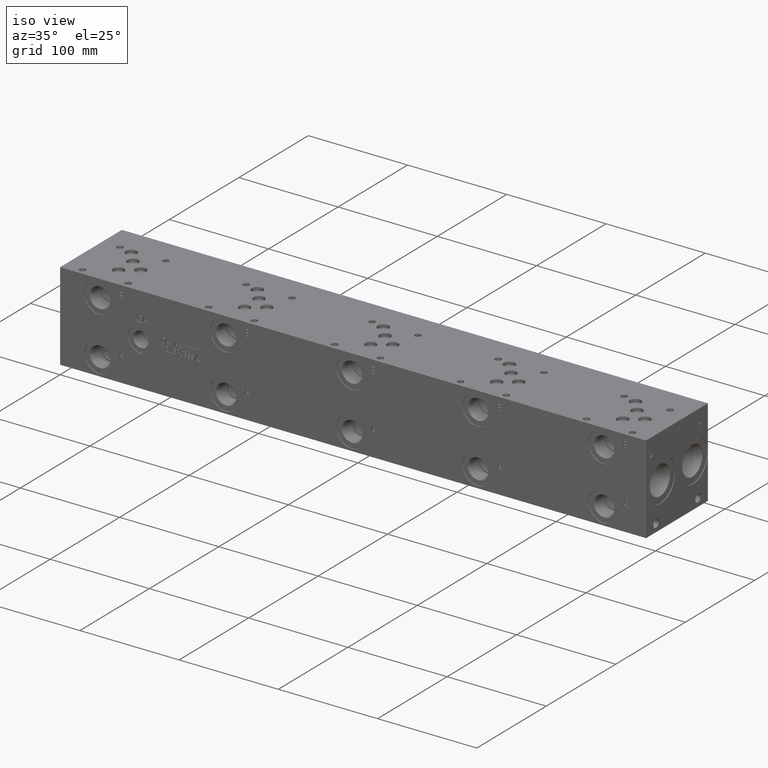
[diagram: clean part render]
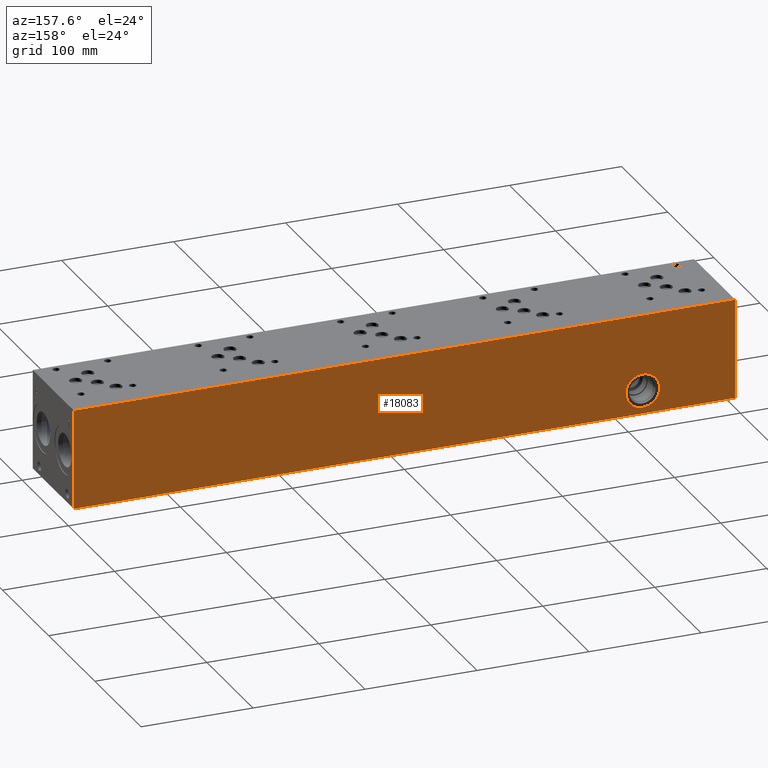
[diagram: tour spotlight — one face highlighted and labeled with its STEP entity id]
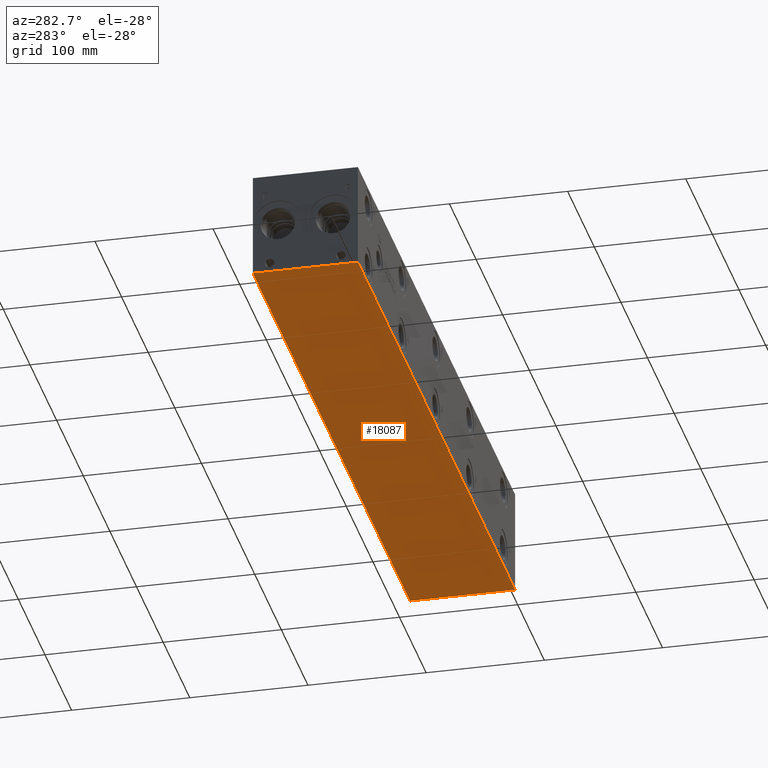
[diagram: tour spotlight — one face highlighted and labeled with its STEP entity id]
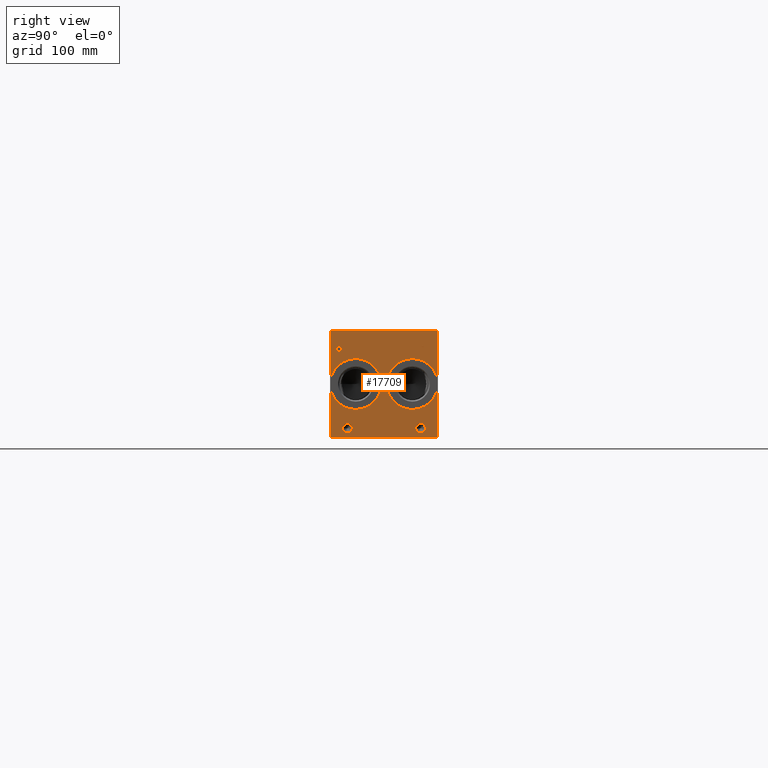
[diagram: tour spotlight — one face highlighted and labeled with its STEP entity id]
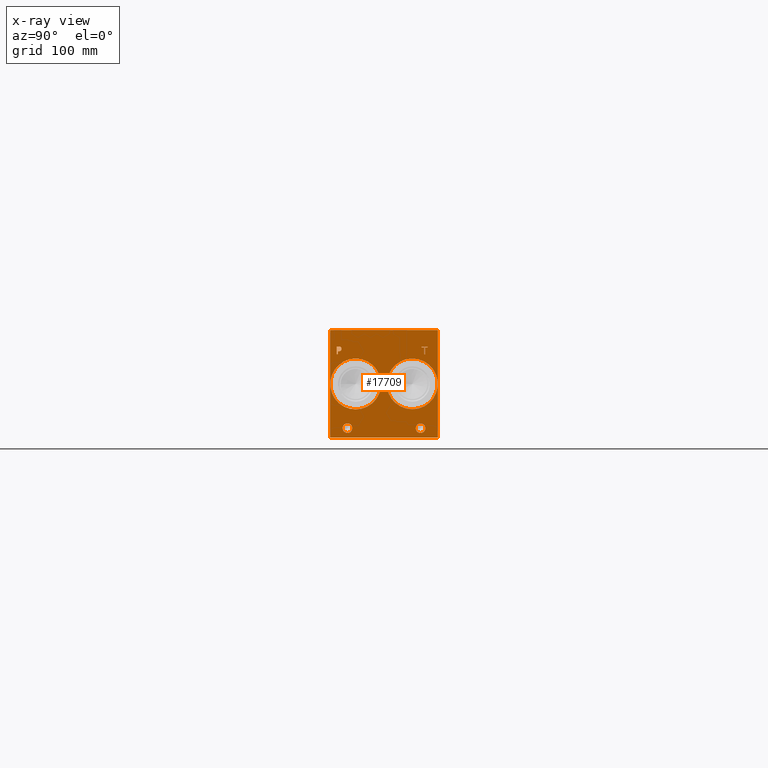
[diagram: x-ray of the same camera — body ghosted, this tour face saturated]
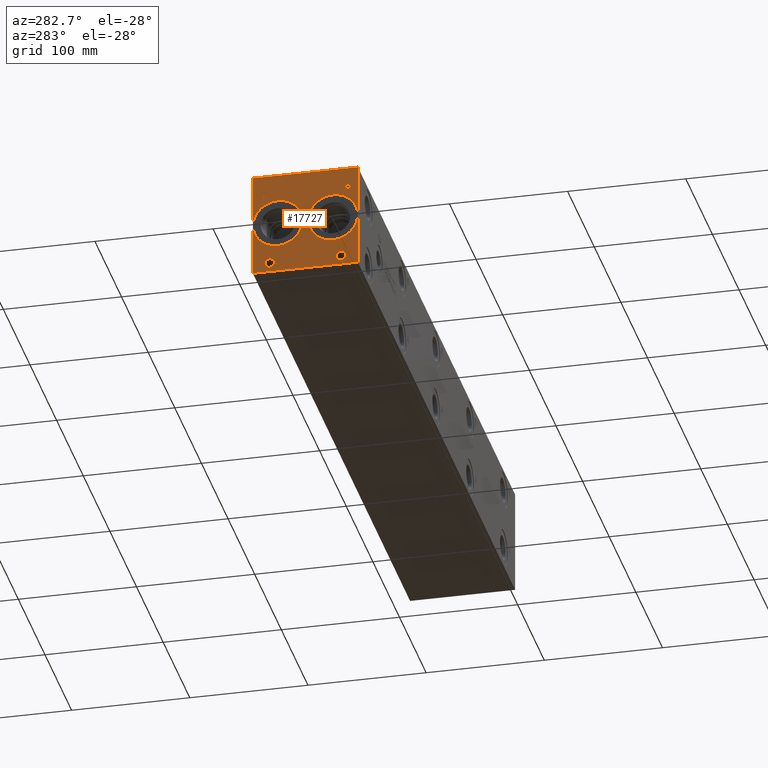
[diagram: tour spotlight — one face highlighted and labeled with its STEP entity id]
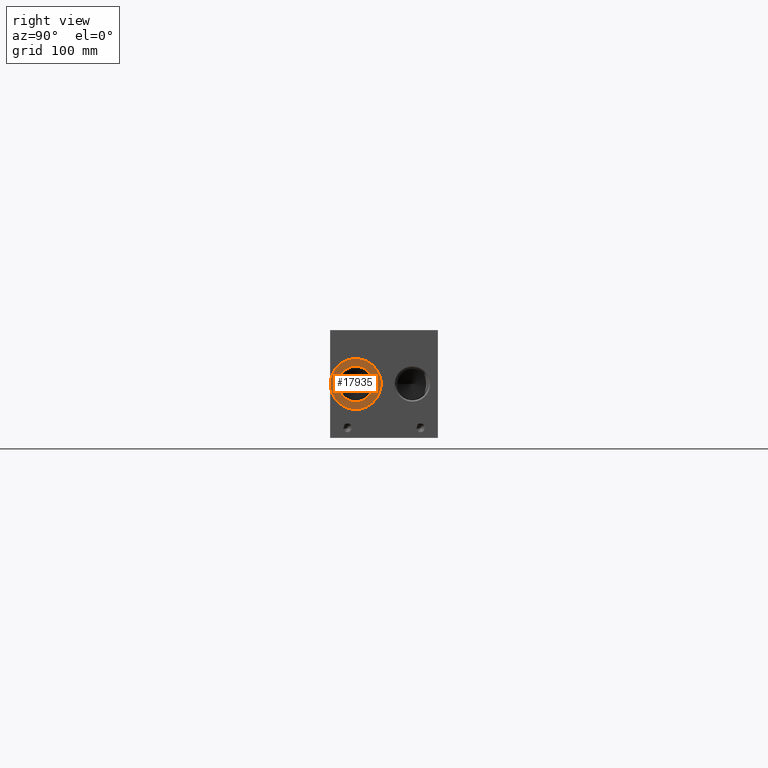
[diagram: tour spotlight — one face highlighted and labeled with its STEP entity id]
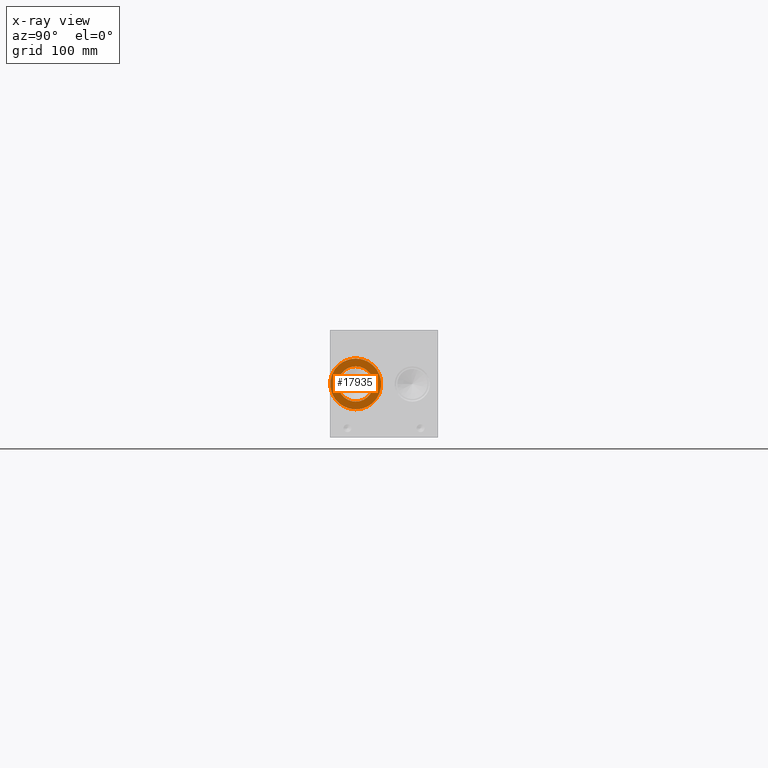
[diagram: x-ray of the same camera — body ghosted, this tour face saturated]
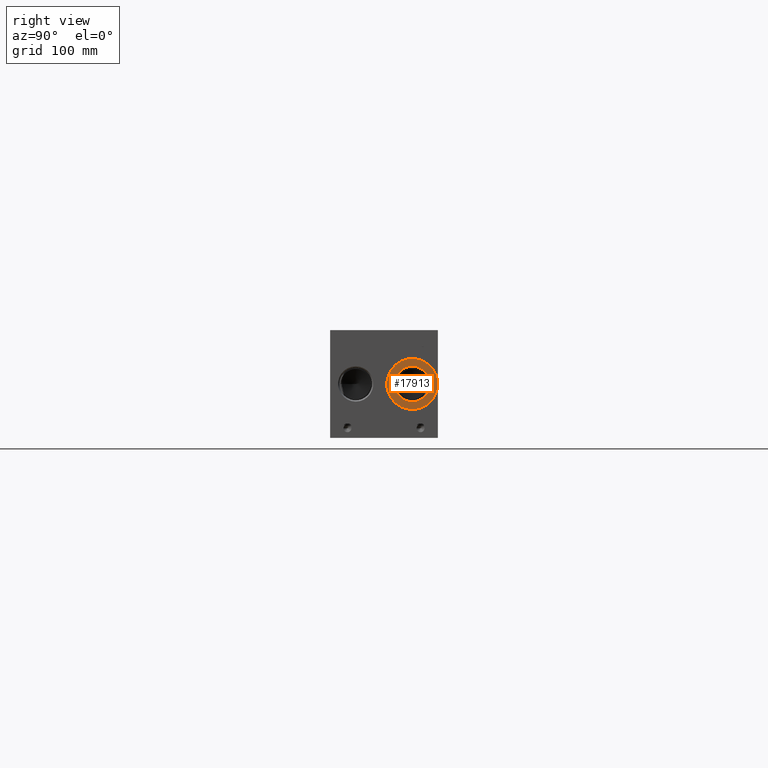
[diagram: tour spotlight — one face highlighted and labeled with its STEP entity id]
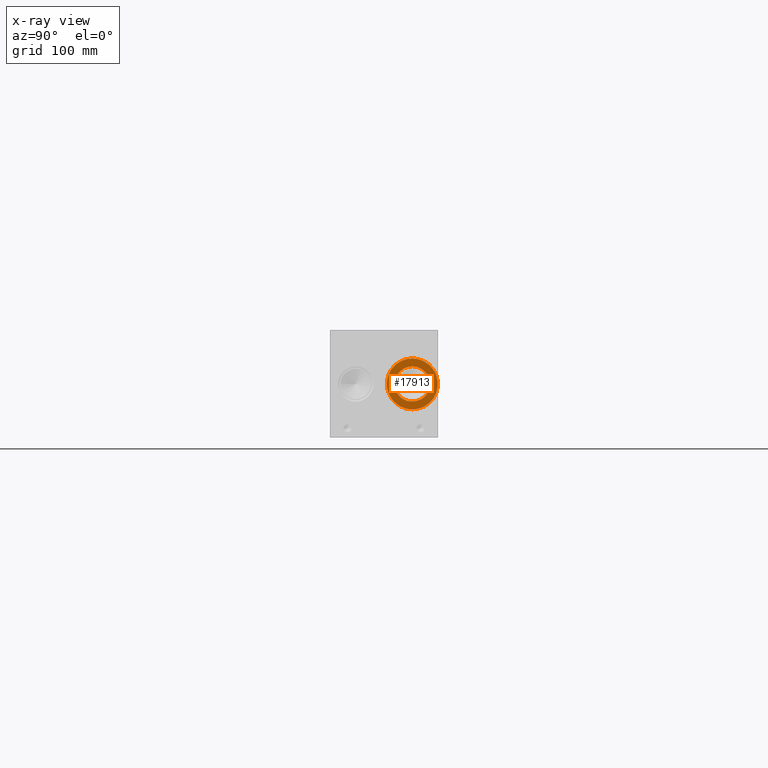
[diagram: x-ray of the same camera — body ghosted, this tour face saturated]
A machine part: a face-by-face anatomy tour. The part has 943 B-rep faces; the first image is the clean iso view, then the 6 largest visible faces are spotlighted one at a time (largest first), each with its STEP entity span.

Face 1 — auxiliary view, entity #18083. In plain terms, the highlighted planar face has unit normal (0, 1, 0).
Definition (entity closure, byte-faithful):
#529=CIRCLE('',#18545,15.08);
#530=CIRCLE('',#18546,15.08);
#1628=FACE_BOUND('',#3687,.T.);
#2607=FACE_OUTER_BOUND('',#3686,.T.);
#3686=EDGE_LOOP('',(#15972,#15973,#15974,#15975));
#3687=EDGE_LOOP('',(#15976,#15977));
#4888=LINE('',#29274,#6406);
#4924=LINE('',#29498,#6442);
#5248=LINE('',#31542,#6766);
#5249=LINE('',#31543,#6767);
#6406=VECTOR('',#21327,10.);
#6442=VECTOR('',#21399,10.);
#6766=VECTOR('',#23473,10.);
#6767=VECTOR('',#23474,10.);
#7834=VERTEX_POINT('',#29271);
#7835=VERTEX_POINT('',#29273);
#7876=VERTEX_POINT('',#29494);
#7877=VERTEX_POINT('',#29496);
#7938=VERTEX_POINT('',#29859);
#7939=VERTEX_POINT('',#29860);
#10101=EDGE_CURVE('',#7834,#7835,#4888,.T.);
#10161=EDGE_CURVE('',#7876,#7877,#4924,.T.);
#10257=EDGE_CURVE('',#7938,#7939,#529,.T.);
#10258=EDGE_CURVE('',#7939,#7938,#530,.T.);
#11040=EDGE_CURVE('',#7834,#7876,#5248,.T.);
#11041=EDGE_CURVE('',#7835,#7877,#5249,.T.);
#15972=ORIENTED_EDGE('',*,*,#11040,.T.);
#15973=ORIENTED_EDGE('',*,*,#10161,.T.);
#15974=ORIENTED_EDGE('',*,*,#11041,.F.);
#15975=ORIENTED_EDGE('',*,*,#10101,.F.);
#15976=ORIENTED_EDGE('',*,*,#10257,.T.);
#15977=ORIENTED_EDGE('',*,*,#10258,.T.);
#16541=PLANE('',#19384);
#18083=ADVANCED_FACE('',(#2607,#1628),#16541,.T.);
#18545=AXIS2_PLACEMENT_3D('',#29861,#21535,#21536);
#18546=AXIS2_PLACEMENT_3D('',#29862,#21537,#21538);
#19384=AXIS2_PLACEMENT_3D('',#31541,#23471,#23472);
#21327=DIRECTION('',(0.,0.,1.));
#21399=DIRECTION('',(0.,0.,1.));
#21535=DIRECTION('center_axis',(0.,-1.,0.));
#21536=DIRECTION('ref_axis',(1.,0.,0.));
#21537=DIRECTION('center_axis',(0.,-1.,0.));
#21538=DIRECTION('ref_axis',(1.,0.,0.));
#23471=DIRECTION('center_axis',(0.,1.,0.));
#23472=DIRECTION('ref_axis',(-1.,0.,0.));
#23473=DIRECTION('',(-1.,0.,0.));
#23474=DIRECTION('',(-1.,0.,0.));
#29271=CARTESIAN_POINT('',(590.55,88.9,0.));
#29273=CARTESIAN_POINT('',(590.55,88.9,88.9));
#29274=CARTESIAN_POINT('',(590.55,88.9,0.));
#29494=CARTESIAN_POINT('',(0.,88.9,0.));
#29496=CARTESIAN_POINT('',(0.,88.9,88.9));
#29498=CARTESIAN_POINT('',(0.,88.9,0.));
#29859=CARTESIAN_POINT('',(97.63,88.9,20.6502));
#29860=CARTESIAN_POINT('',(67.47,88.9,20.6502));
#29861=CARTESIAN_POINT('Origin',(82.55,88.9,20.6502));
#29862=CARTESIAN_POINT('Origin',(82.55,88.9,20.6502));
#31541=CARTESIAN_POINT('Origin',(590.55,88.9,0.));
#31542=CARTESIAN_POINT('',(590.55,88.9,0.));
#31543=CARTESIAN_POINT('',(590.55,88.9,88.9));

Face 2 — auxiliary view, entity #18087. In plain terms, the highlighted planar face has unit normal (0, 0, 1).
Definition (entity closure, byte-faithful):
#2611=FACE_OUTER_BOUND('',#3731,.T.);
#3731=EDGE_LOOP('',(#16076,#16077,#16078,#16079));
#3765=LINE('',#23554,#5283);
#4887=LINE('',#29272,#6405);
#4922=LINE('',#29495,#6440);
#5248=LINE('',#31542,#6766);
#5283=VECTOR('',#19450,10.);
#6405=VECTOR('',#21326,10.);
#6440=VECTOR('',#21397,10.);
#6766=VECTOR('',#23473,10.);
#6790=VERTEX_POINT('',#23552);
#6791=VERTEX_POINT('',#23553);
#7834=VERTEX_POINT('',#29271);
#7876=VERTEX_POINT('',#29494);
#8556=EDGE_CURVE('',#6790,#6791,#3765,.T.);
#10100=EDGE_CURVE('',#6791,#7834,#4887,.T.);
#10159=EDGE_CURVE('',#7876,#6790,#4922,.T.);
#11040=EDGE_CURVE('',#7834,#7876,#5248,.T.);
#16076=ORIENTED_EDGE('',*,*,#8556,.F.);
#16077=ORIENTED_EDGE('',*,*,#10159,.F.);
#16078=ORIENTED_EDGE('',*,*,#11040,.F.);
#16079=ORIENTED_EDGE('',*,*,#10100,.F.);
#16545=PLANE('',#19388);
#18087=ADVANCED_FACE('',(#2611),#16545,.F.);
#19388=AXIS2_PLACEMENT_3D('',#31547,#23481,#23482);
#19450=DIRECTION('',(1.,0.,0.));
#21326=DIRECTION('',(0.,1.,0.));
#21397=DIRECTION('',(0.,-1.,0.));
#23473=DIRECTION('',(-1.,0.,0.));
#23481=DIRECTION('center_axis',(0.,0.,1.));
#23482=DIRECTION('ref_axis',(1.,0.,0.));
#23552=CARTESIAN_POINT('',(0.,0.,0.));
#23553=CARTESIAN_POINT('',(590.55,0.,0.));
#23554=CARTESIAN_POINT('',(0.,0.,0.));
#29271=CARTESIAN_POINT('',(590.55,88.9,0.));
#29272=CARTESIAN_POINT('',(590.55,0.,0.));
#29494=CARTESIAN_POINT('',(0.,88.9,0.));
#29495=CARTESIAN_POINT('',(0.,88.9,0.));
#31542=CARTESIAN_POINT('',(590.55,88.9,0.));
#31547=CARTESIAN_POINT('Origin',(295.275,44.45,0.));

Face 3 — right view, entity #17709. An x-ray twin of the same camera follows (body ghosted, this face saturated) — the face is partly hidden behind the body. In plain terms, the highlighted planar face has unit normal (1, 0, 0).
Definition (entity closure, byte-faithful):
#513=CIRCLE('',#18492,21.0185);
#514=CIRCLE('',#18493,21.0185);
#515=CIRCLE('',#18494,21.0185);
#516=CIRCLE('',#18495,21.0185);
#517=CIRCLE('',#18496,3.9624);
#518=CIRCLE('',#18497,3.9624);
#519=CIRCLE('',#18498,3.9624);
#520=CIRCLE('',#18499,3.9624);
#1446=B_SPLINE_CURVE_WITH_KNOTS('',2,(#29173,#29174,#29175,#29176),
 .UNSPECIFIED.,.F.,.F.,(3,1,3),(0.,1.,2.),.UNSPECIFIED.);
#1448=B_SPLINE_CURVE_WITH_KNOTS('',2,(#29194,#29195,#29196,#29197),
 .UNSPECIFIED.,.F.,.F.,(3,1,3),(0.,1.,2.),.UNSPECIFIED.);
#1450=B_SPLINE_CURVE_WITH_KNOTS('',2,(#29243,#29244,#29245,#29246),
 .UNSPECIFIED.,.F.,.F.,(3,1,3),(0.,1.,2.),.UNSPECIFIED.);
#1452=B_SPLINE_CURVE_WITH_KNOTS('',2,(#29261,#29262,#29263,#29264),
 .UNSPECIFIED.,.F.,.F.,(3,1,3),(0.,1.,2.),.UNSPECIFIED.);
#1556=FACE_BOUND('',#3241,.T.);
#1557=FACE_BOUND('',#3242,.T.);
#1558=FACE_BOUND('',#3243,.T.);
#1559=FACE_BOUND('',#3244,.T.);
#1560=FACE_BOUND('',#3245,.T.);
#1561=FACE_BOUND('',#3246,.T.);
#2233=FACE_OUTER_BOUND('',#3240,.T.);
#3240=EDGE_LOOP('',(#14117,#14118,#14119,#14120));
#3241=EDGE_LOOP('',(#14121,#14122,#14123,#14124,#14125,#14126,#14127,#14128));
#3242=EDGE_LOOP('',(#14129,#14130));
#3243=EDGE_LOOP('',(#14131,#14132));
#3244=EDGE_LOOP('',(#14133,#14134));
#3245=EDGE_LOOP('',(#14135,#14136));
#3246=EDGE_LOOP('',(#14137,#14138,#14139,#14140,#14141,#14142,#14143,#14144,
#14145));
#3766=LINE('',#23556,#5284);
#4807=LINE('',#28974,#6325);
#4811=LINE('',#28982,#6329);
#4814=LINE('',#28988,#6332);
#4817=LINE('',#28994,#6335);
#4820=LINE('',#29000,#6338);
#4823=LINE('',#29006,#6341);
#4826=LINE('',#29012,#6344);
#4829=LINE('',#29017,#6347);
#4871=LINE('',#29206,#6389);
#4874=LINE('',#29212,#6392);
#4877=LINE('',#29218,#6395);
#4880=LINE('',#29224,#6398);
#4883=LINE('',#29230,#6401);
#4887=LINE('',#29272,#6405);
#4888=LINE('',#29274,#6406);
#4889=LINE('',#29275,#6407);
#5284=VECTOR('',#19451,10.);
#6325=VECTOR('',#21192,10.);
#6329=VECTOR('',#21198,10.);
#6332=VECTOR('',#21203,10.);
#6335=VECTOR('',#21208,10.);
#6338=VECTOR('',#21213,10.);
#6341=VECTOR('',#21218,10.);
#6344=VECTOR('',#21223,10.);
#6347=VECTOR('',#21228,10.);
#6389=VECTOR('',#21298,10.);
#6392=VECTOR('',#21303,10.);
#6395=VECTOR('',#21308,10.);
#6398=VECTOR('',#21313,10.);
#6401=VECTOR('',#21318,10.);
#6405=VECTOR('',#21326,10.);
#6406=VECTOR('',#21327,10.);
#6407=VECTOR('',#21328,10.);
#6791=VERTEX_POINT('',#23553);
#6792=VERTEX_POINT('',#23555);
#7770=VERTEX_POINT('',#28972);
#7771=VERTEX_POINT('',#28973);
#7774=VERTEX_POINT('',#28981);
#7776=VERTEX_POINT('',#28987);
#7778=VERTEX_POINT('',#28993);
#7780=VERTEX_POINT('',#28999);
#7782=VERTEX_POINT('',#29005);
#7784=VERTEX_POINT('',#29011);
#7816=VERTEX_POINT('',#29171);
#7817=VERTEX_POINT('',#29172);
#7820=VERTEX_POINT('',#29193);
#7822=VERTEX_POINT('',#29205);
#7824=VERTEX_POINT('',#29211);
#7826=VERTEX_POINT('',#29217);
#7828=VERTEX_POINT('',#29223);
#7830=VERTEX_POINT('',#29229);
#7832=VERTEX_POINT('',#29242);
#7834=VERTEX_POINT('',#29271);
#7835=VERTEX_POINT('',#29273);
#7836=VERTEX_POINT('',#29276);
#7837=VERTEX_POINT('',#29277);
#7838=VERTEX_POINT('',#29280);
#7839=VERTEX_POINT('',#29281);
#7840=VERTEX_POINT('',#29284);
#7841=VERTEX_POINT('',#29285);
#7842=VERTEX_POINT('',#29288);
#7843=VERTEX_POINT('',#29289);
#8557=EDGE_CURVE('',#6791,#6792,#3766,.T.);
#10004=EDGE_CURVE('',#7770,#7771,#4807,.T.);
#10008=EDGE_CURVE('',#7774,#7770,#4811,.T.);
#10011=EDGE_CURVE('',#7776,#7774,#4814,.T.);
#10014=EDGE_CURVE('',#7778,#7776,#4817,.T.);
#10017=EDGE_CURVE('',#7780,#7778,#4820,.T.);
#10020=EDGE_CURVE('',#7782,#7780,#4823,.T.);
#10023=EDGE_CURVE('',#7784,#7782,#4826,.T.);
#10026=EDGE_CURVE('',#7771,#7784,#4829,.T.);
#10073=EDGE_CURVE('',#7816,#7817,#1446,.T.);
#10077=EDGE_CURVE('',#7820,#7816,#1448,.T.);
#10080=EDGE_CURVE('',#7822,#7820,#4871,.T.);
#10083=EDGE_CURVE('',#7824,#7822,#4874,.T.);
#10086=EDGE_CURVE('',#7826,#7824,#4877,.T.);
#10089=EDGE_CURVE('',#7828,#7826,#4880,.T.);
#10092=EDGE_CURVE('',#7830,#7828,#4883,.T.);
#10095=EDGE_CURVE('',#7832,#7830,#1450,.T.);
#10098=EDGE_CURVE('',#7817,#7832,#1452,.T.);
#10100=EDGE_CURVE('',#6791,#7834,#4887,.T.);
#10101=EDGE_CURVE('',#7834,#7835,#4888,.T.);
#10102=EDGE_CURVE('',#6792,#7835,#4889,.T.);
#10103=EDGE_CURVE('',#7836,#7837,#513,.T.);
#10104=EDGE_CURVE('',#7837,#7836,#514,.T.);
#10105=EDGE_CURVE('',#7838,#7839,#515,.T.);
#10106=EDGE_CURVE('',#7839,#7838,#516,.T.);
#10107=EDGE_CURVE('',#7840,#7841,#517,.T.);
#10108=EDGE_CURVE('',#7841,#7840,#518,.T.);
#10109=EDGE_CURVE('',#7842,#7843,#519,.T.);
#10110=EDGE_CURVE('',#7843,#7842,#520,.T.);
#14117=ORIENTED_EDGE('',*,*,#10100,.T.);
#14118=ORIENTED_EDGE('',*,*,#10101,.T.);
#14119=ORIENTED_EDGE('',*,*,#10102,.F.);
#14120=ORIENTED_EDGE('',*,*,#8557,.F.);
#14121=ORIENTED_EDGE('',*,*,#10004,.T.);
#14122=ORIENTED_EDGE('',*,*,#10026,.T.);
#14123=ORIENTED_EDGE('',*,*,#10023,.T.);
#14124=ORIENTED_EDGE('',*,*,#10020,.T.);
#14125=ORIENTED_EDGE('',*,*,#10017,.T.);
#14126=ORIENTED_EDGE('',*,*,#10014,.T.);
#14127=ORIENTED_EDGE('',*,*,#10011,.T.);
#14128=ORIENTED_EDGE('',*,*,#10008,.T.);
#14129=ORIENTED_EDGE('',*,*,#10103,.T.);
#14130=ORIENTED_EDGE('',*,*,#10104,.T.);
#14131=ORIENTED_EDGE('',*,*,#10105,.T.);
#14132=ORIENTED_EDGE('',*,*,#10106,.T.);
#14133=ORIENTED_EDGE('',*,*,#10107,.T.);
#14134=ORIENTED_EDGE('',*,*,#10108,.T.);
#14135=ORIENTED_EDGE('',*,*,#10109,.T.);
#14136=ORIENTED_EDGE('',*,*,#10110,.T.);
#14137=ORIENTED_EDGE('',*,*,#10073,.T.);
#14138=ORIENTED_EDGE('',*,*,#10098,.T.);
#14139=ORIENTED_EDGE('',*,*,#10095,.T.);
#14140=ORIENTED_EDGE('',*,*,#10092,.T.);
#14141=ORIENTED_EDGE('',*,*,#10089,.T.);
#14142=ORIENTED_EDGE('',*,*,#10086,.T.);
#14143=ORIENTED_EDGE('',*,*,#10083,.T.);
#14144=ORIENTED_EDGE('',*,*,#10080,.T.);
#14145=ORIENTED_EDGE('',*,*,#10077,.T.);
#16447=PLANE('',#18491);
#17709=ADVANCED_FACE('',(#2233,#1556,#1557,#1558,#1559,#1560,#1561),#16447,
 .T.);
#18491=AXIS2_PLACEMENT_3D('',#29270,#21324,#21325);
#18492=AXIS2_PLACEMENT_3D('',#29278,#21329,#21330);
#18493=AXIS2_PLACEMENT_3D('',#29279,#21331,#21332);
#18494=AXIS2_PLACEMENT_3D('',#29282,#21333,#21334);
#18495=AXIS2_PLACEMENT_3D('',#29283,#21335,#21336);
#18496=AXIS2_PLACEMENT_3D('',#29286,#21337,#21338);
#18497=AXIS2_PLACEMENT_3D('',#29287,#21339,#21340);
#18498=AXIS2_PLACEMENT_3D('',#29290,#21341,#21342);
#18499=AXIS2_PLACEMENT_3D('',#29291,#21343,#21344);
#19451=DIRECTION('',(0.,0.,1.));
#21192=DIRECTION('',(0.,-1.,0.));
#21198=DIRECTION('',(0.,0.,-1.));
#21203=DIRECTION('',(0.,-1.,0.));
#21208=DIRECTION('',(0.,0.,-1.));
#21213=DIRECTION('',(0.,1.,0.));
#21218=DIRECTION('',(0.,0.,1.));
#21223=DIRECTION('',(0.,-1.,0.));
#21228=DIRECTION('',(0.,0.,1.));
#21298=DIRECTION('',(0.,1.,0.));
#21303=DIRECTION('',(0.,0.,1.));
#21308=DIRECTION('',(0.,-1.,0.));
#21313=DIRECTION('',(0.,0.,-1.));
#21318=DIRECTION('',(0.,-1.,0.));
#21324=DIRECTION('center_axis',(1.,0.,0.));
#21325=DIRECTION('ref_axis',(0.,1.,0.));
#21326=DIRECTION('',(0.,1.,0.));
#21327=DIRECTION('',(0.,0.,1.));
#21328=DIRECTION('',(0.,1.,0.));
#21329=DIRECTION('center_axis',(-1.,0.,0.));
#21330=DIRECTION('ref_axis',(0.,0.,-1.));
#21331=DIRECTION('center_axis',(-1.,0.,0.));
#21332=DIRECTION('ref_axis',(0.,0.,-1.));
#21333=DIRECTION('center_axis',(-1.,0.,0.));
#21334=DIRECTION('ref_axis',(0.,0.,-1.));
#21335=DIRECTION('center_axis',(-1.,0.,0.));
#21336=DIRECTION('ref_axis',(0.,0.,-1.));
#21337=DIRECTION('center_axis',(-1.,0.,0.));
#21338=DIRECTION('ref_axis',(0.,1.,0.));
#21339=DIRECTION('center_axis',(-1.,0.,0.));
#21340=DIRECTION('ref_axis',(0.,1.,0.));
#21341=DIRECTION('center_axis',(-1.,0.,0.));
#21342=DIRECTION('ref_axis',(0.,1.,0.));
#21343=DIRECTION('center_axis',(-1.,0.,0.));
#21344=DIRECTION('ref_axis',(0.,1.,0.));
#23553=CARTESIAN_POINT('',(590.55,0.,0.));
#23555=CARTESIAN_POINT('',(590.55,0.,88.9));
#23556=CARTESIAN_POINT('',(590.55,0.,0.));
#28972=CARTESIAN_POINT('',(590.55,78.375415271453,69.05625));
#28973=CARTESIAN_POINT('',(590.55,77.5314930799135,69.05625));
#28974=CARTESIAN_POINT('',(590.55,39.1877076357265,69.05625));
#28981=CARTESIAN_POINT('',(590.55,78.375415271453,74.6549533194816));
#28982=CARTESIAN_POINT('',(590.55,78.375415271453,37.3274766597408));
#28987=CARTESIAN_POINT('',(590.55,80.5058042183881,74.6549533194816));
#28988=CARTESIAN_POINT('',(590.55,40.252902109194,74.6549533194816));
#28993=CARTESIAN_POINT('',(590.55,80.5058042183881,75.4062499046326));
#28994=CARTESIAN_POINT('',(590.55,80.5058042183881,37.7031249523163));
#28999=CARTESIAN_POINT('',(590.55,75.4011041329784,75.4062499046326));
#29000=CARTESIAN_POINT('',(590.55,37.7005520664892,75.4062499046326));
#29005=CARTESIAN_POINT('',(590.55,75.4011041329784,74.6549533194816));
#29006=CARTESIAN_POINT('',(590.55,75.4011041329784,37.3274766597408));
#29011=CARTESIAN_POINT('',(590.55,77.5314930799135,74.6549533194816));
#29012=CARTESIAN_POINT('',(590.55,38.7657465399567,74.6549533194816));
#29017=CARTESIAN_POINT('',(590.55,77.5314930799135,34.528125));
#29171=CARTESIAN_POINT('',(590.55,8.66306720235939,75.0100181439707));
#29172=CARTESIAN_POINT('',(590.55,9.41950965453199,73.491987372604));
#29173=CARTESIAN_POINT('Ctrl Pts',(590.55,8.66306720235939,75.0100181439707));
#29174=CARTESIAN_POINT('Ctrl Pts',(590.55,9.01813202684857,74.7681623939564));
#29175=CARTESIAN_POINT('Ctrl Pts',(590.55,9.41950965453199,74.0220116758269));
#29176=CARTESIAN_POINT('Ctrl Pts',(590.55,9.41950965453199,73.491987372604));
#29193=CARTESIAN_POINT('',(590.55,7.0009521543883,75.4062499046326));
#29194=CARTESIAN_POINT('Ctrl Pts',(590.55,7.0009521543883,75.4062499046326));
#29195=CARTESIAN_POINT('Ctrl Pts',(590.55,7.56699752676236,75.4062499046326));
#29196=CARTESIAN_POINT('Ctrl Pts',(590.55,8.35946104808603,75.2209986918556));
#29197=CARTESIAN_POINT('Ctrl Pts',(590.55,8.66306720235939,75.0100181439707));
#29205=CARTESIAN_POINT('',(590.55,5.40573337769779,75.4062499046326));
#29206=CARTESIAN_POINT('',(590.55,2.70286668884889,75.4062499046326));
#29211=CARTESIAN_POINT('',(590.55,5.40573337769779,69.05625));
#29212=CARTESIAN_POINT('',(590.55,5.40573337769779,34.528125));
#29217=CARTESIAN_POINT('',(590.55,6.24965556923729,69.05625));
#29218=CARTESIAN_POINT('',(590.55,3.12482778461864,69.05625));
#29223=CARTESIAN_POINT('',(590.55,6.24965556923729,71.4233488299279));
#29224=CARTESIAN_POINT('',(590.55,6.24965556923729,35.7116744149639));
#29229=CARTESIAN_POINT('',(590.55,6.96493108523723,71.4233488299279));
#29230=CARTESIAN_POINT('',(590.55,3.48246554261861,71.4233488299279));
#29242=CARTESIAN_POINT('',(590.55,8.8637560162011,72.0820198086904));
#29243=CARTESIAN_POINT('Ctrl Pts',(590.55,8.8637560162011,72.0820198086904));
#29244=CARTESIAN_POINT('Ctrl Pts',(590.55,8.53442052681983,71.7578301863307));
#29245=CARTESIAN_POINT('Ctrl Pts',(590.55,7.64418553208609,71.4233488299279));
#29246=CARTESIAN_POINT('Ctrl Pts',(590.55,6.96493108523723,71.4233488299279));
#29261=CARTESIAN_POINT('Ctrl Pts',(590.55,9.41950965453199,73.491987372604));
#29262=CARTESIAN_POINT('Ctrl Pts',(590.55,9.41950965453199,73.0803180108774));
#29263=CARTESIAN_POINT('Ctrl Pts',(590.55,9.1261952343018,72.3393131597695));
#29264=CARTESIAN_POINT('Ctrl Pts',(590.55,8.8637560162011,72.0820198086904));
#29270=CARTESIAN_POINT('Origin',(590.55,0.,0.));
#29271=CARTESIAN_POINT('',(590.55,88.9,0.));
#29272=CARTESIAN_POINT('',(590.55,0.,0.));
#29273=CARTESIAN_POINT('',(590.55,88.9,88.9));
#29274=CARTESIAN_POINT('',(590.55,88.9,0.));
#29275=CARTESIAN_POINT('',(590.55,0.,88.9));
#29276=CARTESIAN_POINT('',(590.55,21.082,23.4315));
#29277=CARTESIAN_POINT('',(590.55,21.082,65.4685));
#29278=CARTESIAN_POINT('Origin',(590.55,21.082,44.45));
#29279=CARTESIAN_POINT('Origin',(590.55,21.082,44.45));
#29280=CARTESIAN_POINT('',(590.55,67.818,23.4315));
#29281=CARTESIAN_POINT('',(590.55,67.818,65.4685));
#29282=CARTESIAN_POINT('Origin',(590.55,67.818,44.45));
#29283=CARTESIAN_POINT('Origin',(590.55,67.818,44.45));
#29284=CARTESIAN_POINT('',(590.55,78.5876,7.9248));
#29285=CARTESIAN_POINT('',(590.55,70.6628,7.9248));
#29286=CARTESIAN_POINT('Origin',(590.55,74.6252,7.9248));
#29287=CARTESIAN_POINT('Origin',(590.55,74.6252,7.9248));
#29288=CARTESIAN_POINT('',(590.55,18.2372,7.9248));
#29289=CARTESIAN_POINT('',(590.55,10.3124,7.9248));
#29290=CARTESIAN_POINT('Origin',(590.55,14.2748,7.9248));
#29291=CARTESIAN_POINT('Origin',(590.55,14.2748,7.9248));

Face 4 — auxiliary view, entity #17727. In plain terms, the highlighted planar face has unit normal (-1, 0, 0).
Definition (entity closure, byte-faithful):
#521=CIRCLE('',#18510,21.0185);
#522=CIRCLE('',#18511,21.0185);
#523=CIRCLE('',#18512,21.0185);
#524=CIRCLE('',#18513,21.0185);
#525=CIRCLE('',#18514,3.9624);
#526=CIRCLE('',#18515,3.9624);
#527=CIRCLE('',#18516,3.9624);
#528=CIRCLE('',#18517,3.9624);
#1462=B_SPLINE_CURVE_WITH_KNOTS('',2,(#29396,#29397,#29398,#29399),
 .UNSPECIFIED.,.F.,.F.,(3,1,3),(0.,1.,2.),.UNSPECIFIED.);
#1464=B_SPLINE_CURVE_WITH_KNOTS('',2,(#29417,#29418,#29419,#29420),
 .UNSPECIFIED.,.F.,.F.,(3,1,3),(0.,1.,2.),.UNSPECIFIED.);
#1466=B_SPLINE_CURVE_WITH_KNOTS('',2,(#29466,#29467,#29468,#29469),
 .UNSPECIFIED.,.F.,.F.,(3,1,3),(0.,1.,2.),.UNSPECIFIED.);
#1468=B_SPLINE_CURVE_WITH_KNOTS('',2,(#29484,#29485,#29486,#29487),
 .UNSPECIFIED.,.F.,.F.,(3,1,3),(0.,1.,2.),.UNSPECIFIED.);
#1563=FACE_BOUND('',#3266,.T.);
#1564=FACE_BOUND('',#3267,.T.);
#1565=FACE_BOUND('',#3268,.T.);
#1566=FACE_BOUND('',#3269,.T.);
#1567=FACE_BOUND('',#3270,.T.);
#1568=FACE_BOUND('',#3271,.T.);
#2251=FACE_OUTER_BOUND('',#3265,.T.);
#3265=EDGE_LOOP('',(#14226,#14227,#14228,#14229));
#3266=EDGE_LOOP('',(#14230,#14231,#14232,#14233,#14234,#14235,#14236,#14237));
#3267=EDGE_LOOP('',(#14238,#14239));
#3268=EDGE_LOOP('',(#14240,#14241));
#3269=EDGE_LOOP('',(#14242,#14243));
#3270=EDGE_LOOP('',(#14244,#14245));
#3271=EDGE_LOOP('',(#14246,#14247,#14248,#14249,#14250,#14251,#14252,#14253,
#14254));
#3768=LINE('',#23559,#5286);
#4831=LINE('',#29023,#6349);
#4835=LINE('',#29031,#6353);
#4838=LINE('',#29037,#6356);
#4841=LINE('',#29043,#6359);
#4844=LINE('',#29049,#6362);
#4847=LINE('',#29055,#6365);
#4850=LINE('',#29061,#6368);
#4853=LINE('',#29066,#6371);
#4906=LINE('',#29429,#6424);
#4909=LINE('',#29435,#6427);
#4912=LINE('',#29441,#6430);
#4915=LINE('',#29447,#6433);
#4918=LINE('',#29453,#6436);
#4922=LINE('',#29495,#6440);
#4923=LINE('',#29497,#6441);
#4924=LINE('',#29498,#6442);
#5286=VECTOR('',#19453,10.);
#6349=VECTOR('',#21234,10.);
#6353=VECTOR('',#21240,10.);
#6356=VECTOR('',#21245,10.);
#6359=VECTOR('',#21250,10.);
#6362=VECTOR('',#21255,10.);
#6365=VECTOR('',#21260,10.);
#6368=VECTOR('',#21265,10.);
#6371=VECTOR('',#21270,10.);
#6424=VECTOR('',#21369,10.);
#6427=VECTOR('',#21374,10.);
#6430=VECTOR('',#21379,10.);
#6433=VECTOR('',#21384,10.);
#6436=VECTOR('',#21389,10.);
#6440=VECTOR('',#21397,10.);
#6441=VECTOR('',#21398,10.);
#6442=VECTOR('',#21399,10.);
#6790=VERTEX_POINT('',#23552);
#6793=VERTEX_POINT('',#23557);
#7786=VERTEX_POINT('',#29021);
#7787=VERTEX_POINT('',#29022);
#7790=VERTEX_POINT('',#29030);
#7792=VERTEX_POINT('',#29036);
#7794=VERTEX_POINT('',#29042);
#7796=VERTEX_POINT('',#29048);
#7798=VERTEX_POINT('',#29054);
#7800=VERTEX_POINT('',#29060);
#7858=VERTEX_POINT('',#29394);
#7859=VERTEX_POINT('',#29395);
#7862=VERTEX_POINT('',#29416);
#7864=VERTEX_POINT('',#29428);
#7866=VERTEX_POINT('',#29434);
#7868=VERTEX_POINT('',#29440);
#7870=VERTEX_POINT('',#29446);
#7872=VERTEX_POINT('',#29452);
#7874=VERTEX_POINT('',#29465);
#7876=VERTEX_POINT('',#29494);
#7877=VERTEX_POINT('',#29496);
#7878=VERTEX_POINT('',#29499);
#7879=VERTEX_POINT('',#29500);
#7880=VERTEX_POINT('',#29503);
#7881=VERTEX_POINT('',#29504);
#7882=VERTEX_POINT('',#29507);
#7883=VERTEX_POINT('',#29508);
#7884=VERTEX_POINT('',#29511);
#7885=VERTEX_POINT('',#29512);
#8559=EDGE_CURVE('',#6790,#6793,#3768,.T.);
#10028=EDGE_CURVE('',#7786,#7787,#4831,.T.);
#10032=EDGE_CURVE('',#7790,#7786,#4835,.T.);
#10035=EDGE_CURVE('',#7792,#7790,#4838,.T.);
#10038=EDGE_CURVE('',#7794,#7792,#4841,.T.);
#10041=EDGE_CURVE('',#7796,#7794,#4844,.T.);
#10044=EDGE_CURVE('',#7798,#7796,#4847,.T.);
#10047=EDGE_CURVE('',#7800,#7798,#4850,.T.);
#10050=EDGE_CURVE('',#7787,#7800,#4853,.T.);
#10132=EDGE_CURVE('',#7858,#7859,#1462,.T.);
#10136=EDGE_CURVE('',#7862,#7858,#1464,.T.);
#10139=EDGE_CURVE('',#7864,#7862,#4906,.T.);
#10142=EDGE_CURVE('',#7866,#7864,#4909,.T.);
#10145=EDGE_CURVE('',#7868,#7866,#4912,.T.);
#10148=EDGE_CURVE('',#7870,#7868,#4915,.T.);
#10151=EDGE_CURVE('',#7872,#7870,#4918,.T.);
#10154=EDGE_CURVE('',#7874,#7872,#1466,.T.);
#10157=EDGE_CURVE('',#7859,#7874,#1468,.T.);
#10159=EDGE_CURVE('',#7876,#6790,#4922,.T.);
#10160=EDGE_CURVE('',#7877,#6793,#4923,.T.);
#10161=EDGE_CURVE('',#7876,#7877,#4924,.T.);
#10162=EDGE_CURVE('',#7878,#7879,#521,.T.);
#10163=EDGE_CURVE('',#7879,#7878,#522,.T.);
#10164=EDGE_CURVE('',#7880,#7881,#523,.T.);
#10165=EDGE_CURVE('',#7881,#7880,#524,.T.);
#10166=EDGE_CURVE('',#7882,#7883,#525,.T.);
#10167=EDGE_CURVE('',#7883,#7882,#526,.T.);
#10168=EDGE_CURVE('',#7884,#7885,#527,.T.);
#10169=EDGE_CURVE('',#7885,#7884,#528,.T.);
#14226=ORIENTED_EDGE('',*,*,#10159,.T.);
#14227=ORIENTED_EDGE('',*,*,#8559,.T.);
#14228=ORIENTED_EDGE('',*,*,#10160,.F.);
#14229=ORIENTED_EDGE('',*,*,#10161,.F.);
#14230=ORIENTED_EDGE('',*,*,#10028,.T.);
#14231=ORIENTED_EDGE('',*,*,#10050,.T.);
#14232=ORIENTED_EDGE('',*,*,#10047,.T.);
#14233=ORIENTED_EDGE('',*,*,#10044,.T.);
#14234=ORIENTED_EDGE('',*,*,#10041,.T.);
#14235=ORIENTED_EDGE('',*,*,#10038,.T.);
#14236=ORIENTED_EDGE('',*,*,#10035,.T.);
#14237=ORIENTED_EDGE('',*,*,#10032,.T.);
#14238=ORIENTED_EDGE('',*,*,#10162,.T.);
#14239=ORIENTED_EDGE('',*,*,#10163,.T.);
#14240=ORIENTED_EDGE('',*,*,#10164,.T.);
#14241=ORIENTED_EDGE('',*,*,#10165,.T.);
#14242=ORIENTED_EDGE('',*,*,#10166,.T.);
#14243=ORIENTED_EDGE('',*,*,#10167,.T.);
#14244=ORIENTED_EDGE('',*,*,#10168,.T.);
#14245=ORIENTED_EDGE('',*,*,#10169,.T.);
#14246=ORIENTED_EDGE('',*,*,#10132,.T.);
#14247=ORIENTED_EDGE('',*,*,#10157,.T.);
#14248=ORIENTED_EDGE('',*,*,#10154,.T.);
#14249=ORIENTED_EDGE('',*,*,#10151,.T.);
#14250=ORIENTED_EDGE('',*,*,#10148,.T.);
#14251=ORIENTED_EDGE('',*,*,#10145,.T.);
#14252=ORIENTED_EDGE('',*,*,#10142,.T.);
#14253=ORIENTED_EDGE('',*,*,#10139,.T.);
#14254=ORIENTED_EDGE('',*,*,#10136,.T.);
#16457=PLANE('',#18509);
#17727=ADVANCED_FACE('',(#2251,#1563,#1564,#1565,#1566,#1567,#1568),#16457,
 .T.);
#18509=AXIS2_PLACEMENT_3D('',#29493,#21395,#21396);
#18510=AXIS2_PLACEMENT_3D('',#29501,#21400,#21401);
#18511=AXIS2_PLACEMENT_3D('',#29502,#21402,#21403);
#18512=AXIS2_PLACEMENT_3D('',#29505,#21404,#21405);
#18513=AXIS2_PLACEMENT_3D('',#29506,#21406,#21407);
#18514=AXIS2_PLACEMENT_3D('',#29509,#21408,#21409);
#18515=AXIS2_PLACEMENT_3D('',#29510,#21410,#21411);
#18516=AXIS2_PLACEMENT_3D('',#29513,#21412,#21413);
#18517=AXIS2_PLACEMENT_3D('',#29514,#21414,#21415);
#19453=DIRECTION('',(0.,0.,1.));
#21234=DIRECTION('',(0.,1.,1.0524411238433E-14));
#21240=DIRECTION('',(0.,3.17280044688052E-15,-1.));
#21245=DIRECTION('',(0.,1.,4.16909044227778E-15));
#21250=DIRECTION('',(0.,0.,-1.));
#21255=DIRECTION('',(0.,-1.,-3.47984565141734E-15));
#21260=DIRECTION('',(0.,0.,1.));
#21265=DIRECTION('',(0.,1.,0.));
#21270=DIRECTION('',(0.,-3.17280044688052E-15,1.));
#21369=DIRECTION('',(0.,-1.,-5.56775304226775E-15));
#21374=DIRECTION('',(0.,-3.14708893596576E-15,1.));
#21379=DIRECTION('',(0.,1.,0.));
#21384=DIRECTION('',(0.,3.75218139804999E-15,-1.));
#21389=DIRECTION('',(0.,1.,1.24172909575755E-14));
#21395=DIRECTION('center_axis',(-1.,0.,0.));
#21396=DIRECTION('ref_axis',(0.,-1.,0.));
#21397=DIRECTION('',(0.,-1.,0.));
#21398=DIRECTION('',(0.,-1.,0.));
#21399=DIRECTION('',(0.,0.,1.));
#21400=DIRECTION('center_axis',(1.,0.,0.));
#21401=DIRECTION('ref_axis',(0.,0.,1.));
#21402=DIRECTION('center_axis',(1.,0.,0.));
#21403=DIRECTION('ref_axis',(0.,0.,1.));
#21404=DIRECTION('center_axis',(1.,0.,0.));
#21405=DIRECTION('ref_axis',(0.,0.,1.));
#21406=DIRECTION('center_axis',(1.,0.,0.));
#21407=DIRECTION('ref_axis',(0.,0.,1.));
#21408=DIRECTION('center_axis',(1.,0.,0.));
#21409=DIRECTION('ref_axis',(0.,1.,0.));
#21410=DIRECTION('center_axis',(1.,0.,0.));
#21411=DIRECTION('ref_axis',(0.,1.,0.));
#21412=DIRECTION('center_axis',(1.,0.,0.));
#21413=DIRECTION('ref_axis',(0.,1.,0.));
#21414=DIRECTION('center_axis',(1.,0.,0.));
#21415=DIRECTION('ref_axis',(0.,1.,0.));
#23552=CARTESIAN_POINT('',(0.,0.,0.));
#23557=CARTESIAN_POINT('',(0.,0.,88.9));
#23559=CARTESIAN_POINT('',(0.,0.,0.));
#29021=CARTESIAN_POINT('',(0.,78.787084728547,67.46875));
#29022=CARTESIAN_POINT('',(0.,79.6310069200865,67.46875));
#29023=CARTESIAN_POINT('',(0.,83.8435423642731,67.46875));
#29030=CARTESIAN_POINT('',(0.,78.787084728547,73.0674533194815));
#29031=CARTESIAN_POINT('',(0.,78.7870847285471,36.5337266597407));
#29036=CARTESIAN_POINT('',(0.,76.6566957816119,73.0674533194815));
#29037=CARTESIAN_POINT('',(0.,82.7783478908058,73.0674533194815));
#29042=CARTESIAN_POINT('',(0.,76.6566957816119,73.8187499046325));
#29043=CARTESIAN_POINT('',(0.,76.6566957816119,36.9093749523163));
#29048=CARTESIAN_POINT('',(0.,81.7613958670216,73.8187499046326));
#29049=CARTESIAN_POINT('',(0.,85.3306979335107,73.8187499046326));
#29054=CARTESIAN_POINT('',(0.,81.7613958670216,73.0674533194815));
#29055=CARTESIAN_POINT('',(0.,81.7613958670216,36.5337266597408));
#29060=CARTESIAN_POINT('',(0.,79.6310069200865,73.0674533194815));
#29061=CARTESIAN_POINT('',(0.,84.2655034600432,73.0674533194815));
#29066=CARTESIAN_POINT('',(0.,79.6310069200866,33.734375));
#29394=CARTESIAN_POINT('',(0.,7.21193279764059,73.4225181439707));
#29395=CARTESIAN_POINT('',(0.,6.455490345468,71.9044873726039));
#29396=CARTESIAN_POINT('Ctrl Pts',(0.,7.21193279764059,73.4225181439707));
#29397=CARTESIAN_POINT('Ctrl Pts',(0.,6.85686797315142,73.1806623939563));
#29398=CARTESIAN_POINT('Ctrl Pts',(0.,6.455490345468,72.4345116758269));
#29399=CARTESIAN_POINT('Ctrl Pts',(0.,6.455490345468,71.9044873726039));
#29416=CARTESIAN_POINT('',(0.,8.87404784561168,73.8187499046325));
#29417=CARTESIAN_POINT('Ctrl Pts',(0.,8.87404784561168,73.8187499046325));
#29418=CARTESIAN_POINT('Ctrl Pts',(0.,8.30800247323763,73.8187499046325));
#29419=CARTESIAN_POINT('Ctrl Pts',(0.,7.51553895191395,73.6334986918556));
#29420=CARTESIAN_POINT('Ctrl Pts',(0.,7.21193279764059,73.4225181439707));
#29428=CARTESIAN_POINT('',(0.,10.4692666223022,73.8187499046326));
#29429=CARTESIAN_POINT('',(0.,49.6846333111509,73.8187499046328));
#29434=CARTESIAN_POINT('',(0.,10.4692666223022,67.46875));
#29435=CARTESIAN_POINT('',(0.,10.4692666223023,33.7343749999999));
#29440=CARTESIAN_POINT('',(0.,9.62534443076272,67.46875));
#29441=CARTESIAN_POINT('',(0.,49.2626722153814,67.46875));
#29446=CARTESIAN_POINT('',(0.,9.62534443076271,69.8358488299279));
#29447=CARTESIAN_POINT('',(0.,9.62534443076284,34.9179244149638));
#29452=CARTESIAN_POINT('',(0.,8.91006891476277,69.8358488299278));
#29453=CARTESIAN_POINT('',(0.,48.9050344573809,69.8358488299283));
#29465=CARTESIAN_POINT('',(0.,7.01124398379889,70.4945198086904));
#29466=CARTESIAN_POINT('Ctrl Pts',(0.,7.01124398379889,70.4945198086904));
#29467=CARTESIAN_POINT('Ctrl Pts',(0.,7.34057947318016,70.1703301863307));
#29468=CARTESIAN_POINT('Ctrl Pts',(0.,8.2308144679139,69.8358488299278));
#29469=CARTESIAN_POINT('Ctrl Pts',(0.,8.91006891476277,69.8358488299278));
#29484=CARTESIAN_POINT('Ctrl Pts',(0.,6.455490345468,71.9044873726039));
#29485=CARTESIAN_POINT('Ctrl Pts',(0.,6.455490345468,71.4928180108773));
#29486=CARTESIAN_POINT('Ctrl Pts',(0.,6.7488047656982,70.7518131597695));
#29487=CARTESIAN_POINT('Ctrl Pts',(0.,7.01124398379889,70.4945198086904));
#29493=CARTESIAN_POINT('Origin',(0.,88.9,0.));
#29494=CARTESIAN_POINT('',(0.,88.9,0.));
#29495=CARTESIAN_POINT('',(0.,88.9,0.));
#29496=CARTESIAN_POINT('',(0.,88.9,88.9));
#29497=CARTESIAN_POINT('',(0.,88.9,88.9));
#29498=CARTESIAN_POINT('',(0.,88.9,0.));
#29499=CARTESIAN_POINT('',(0.,21.082,65.4685));
#29500=CARTESIAN_POINT('',(0.,21.082,23.4315));
#29501=CARTESIAN_POINT('Origin',(0.,21.082,44.45));
#29502=CARTESIAN_POINT('Origin',(0.,21.082,44.45));
#29503=CARTESIAN_POINT('',(0.,67.818,65.4685));
#29504=CARTESIAN_POINT('',(0.,67.818,23.4315));
#29505=CARTESIAN_POINT('Origin',(0.,67.818,44.45));
#29506=CARTESIAN_POINT('Origin',(0.,67.818,44.45));
#29507=CARTESIAN_POINT('',(0.,18.2372,7.92479999999999));
#29508=CARTESIAN_POINT('',(0.,10.3124,7.92479999999999));
#29509=CARTESIAN_POINT('Origin',(0.,14.2748,7.92479999999999));
#29510=CARTESIAN_POINT('Origin',(0.,14.2748,7.92479999999999));
#29511=CARTESIAN_POINT('',(0.,78.5876,7.92479999999999));
#29512=CARTESIAN_POINT('',(0.,70.6628,7.92479999999999));
#29513=CARTESIAN_POINT('Origin',(0.,74.6252,7.92479999999999));
#29514=CARTESIAN_POINT('Origin',(0.,74.6252,7.92479999999999));

Face 5 — right view, entity #17935. An x-ray twin of the same camera follows (body ghosted, this face saturated) — the face is partly hidden behind the body. In plain terms, the highlighted planar face has unit normal (-1, 0, 0).
Definition (entity closure, byte-faithful):
#814=CIRCLE('',#18996,21.0185);
#815=CIRCLE('',#18997,21.0185);
#816=CIRCLE('',#18999,14.5923);
#817=CIRCLE('',#19000,14.5923);
#1608=FACE_BOUND('',#3519,.T.);
#2459=FACE_OUTER_BOUND('',#3518,.T.);
#3518=EDGE_LOOP('',(#15263,#15264));
#3519=EDGE_LOOP('',(#15265,#15266));
#8247=VERTEX_POINT('',#30749);
#8248=VERTEX_POINT('',#30751);
#8249=VERTEX_POINT('',#30755);
#8250=VERTEX_POINT('',#30756);
#10673=EDGE_CURVE('',#8247,#8248,#814,.T.);
#10674=EDGE_CURVE('',#8248,#8247,#815,.T.);
#10675=EDGE_CURVE('',#8249,#8250,#816,.T.);
#10676=EDGE_CURVE('',#8250,#8249,#817,.T.);
#15263=ORIENTED_EDGE('',*,*,#10674,.F.);
#15264=ORIENTED_EDGE('',*,*,#10673,.F.);
#15265=ORIENTED_EDGE('',*,*,#10675,.T.);
#15266=ORIENTED_EDGE('',*,*,#10676,.T.);
#16520=PLANE('',#18998);
#17935=ADVANCED_FACE('',(#2459,#1608),#16520,.F.);
#18996=AXIS2_PLACEMENT_3D('',#30752,#22568,#22569);
#18997=AXIS2_PLACEMENT_3D('',#30753,#22570,#22571);
#18998=AXIS2_PLACEMENT_3D('',#30754,#22572,#22573);
#18999=AXIS2_PLACEMENT_3D('',#30757,#22574,#22575);
#19000=AXIS2_PLACEMENT_3D('',#30758,#22576,#22577);
#22568=DIRECTION('center_axis',(-1.,0.,0.));
#22569=DIRECTION('ref_axis',(0.,0.,1.));
#22570=DIRECTION('center_axis',(-1.,0.,0.));
#22571=DIRECTION('ref_axis',(0.,0.,1.));
#22572=DIRECTION('center_axis',(-1.,0.,0.));
#22573=DIRECTION('ref_axis',(0.,0.,1.));
#22574=DIRECTION('center_axis',(-1.,0.,0.));
#22575=DIRECTION('ref_axis',(0.,0.,1.));
#22576=DIRECTION('center_axis',(-1.,0.,0.));
#22577=DIRECTION('ref_axis',(0.,0.,1.));
#30749=CARTESIAN_POINT('',(589.7626,21.082,65.4685));
#30751=CARTESIAN_POINT('',(589.7626,21.082,23.4315));
#30752=CARTESIAN_POINT('Origin',(589.7626,21.082,44.45));
#30753=CARTESIAN_POINT('Origin',(589.7626,21.082,44.45));
#30754=CARTESIAN_POINT('Origin',(589.7626,21.082,29.8577));
#30755=CARTESIAN_POINT('',(589.7626,21.082,29.8577));
#30756=CARTESIAN_POINT('',(589.7626,21.082,59.0423));
#30757=CARTESIAN_POINT('Origin',(589.7626,21.082,44.45));
#30758=CARTESIAN_POINT('Origin',(589.7626,21.082,44.45));

Face 6 — right view, entity #17913. An x-ray twin of the same camera follows (body ghosted, this face saturated) — the face is partly hidden behind the body. In plain terms, the highlighted planar face has unit normal (-1, 0, 0).
Definition (entity closure, byte-faithful):
#776=CIRCLE('',#18936,21.0185);
#777=CIRCLE('',#18937,21.0185);
#778=CIRCLE('',#18939,14.5923);
#779=CIRCLE('',#18940,14.5923);
#1604=FACE_BOUND('',#3493,.T.);
#2437=FACE_OUTER_BOUND('',#3492,.T.);
#3492=EDGE_LOOP('',(#15151,#15152));
#3493=EDGE_LOOP('',(#15153,#15154));
#8207=VERTEX_POINT('',#30631);
#8208=VERTEX_POINT('',#30633);
#8209=VERTEX_POINT('',#30637);
#8210=VERTEX_POINT('',#30638);
#10617=EDGE_CURVE('',#8207,#8208,#776,.T.);
#10618=EDGE_CURVE('',#8208,#8207,#777,.T.);
#10619=EDGE_CURVE('',#8209,#8210,#778,.T.);
#10620=EDGE_CURVE('',#8210,#8209,#779,.T.);
#15151=ORIENTED_EDGE('',*,*,#10618,.F.);
#15152=ORIENTED_EDGE('',*,*,#10617,.F.);
#15153=ORIENTED_EDGE('',*,*,#10619,.T.);
#15154=ORIENTED_EDGE('',*,*,#10620,.T.);
#16516=PLANE('',#18938);
#17913=ADVANCED_FACE('',(#2437,#1604),#16516,.F.);
#18936=AXIS2_PLACEMENT_3D('',#30634,#22430,#22431);
#18937=AXIS2_PLACEMENT_3D('',#30635,#22432,#22433);
#18938=AXIS2_PLACEMENT_3D('',#30636,#22434,#22435);
#18939=AXIS2_PLACEMENT_3D('',#30639,#22436,#22437);
#18940=AXIS2_PLACEMENT_3D('',#30640,#22438,#22439);
#22430=DIRECTION('center_axis',(-1.,0.,0.));
#22431=DIRECTION('ref_axis',(0.,0.,1.));
#22432=DIRECTION('center_axis',(-1.,0.,0.));
#22433=DIRECTION('ref_axis',(0.,0.,1.));
#22434=DIRECTION('center_axis',(-1.,0.,0.));
#22435=DIRECTION('ref_axis',(0.,0.,1.));
#22436=DIRECTION('center_axis',(-1.,0.,0.));
#22437=DIRECTION('ref_axis',(0.,0.,1.));
#22438=DIRECTION('center_axis',(-1.,0.,0.));
#22439=DIRECTION('ref_axis',(0.,0.,1.));
#30631=CARTESIAN_POINT('',(589.7626,67.818,65.4685));
#30633=CARTESIAN_POINT('',(589.7626,67.818,23.4315));
#30634=CARTESIAN_POINT('Origin',(589.7626,67.818,44.45));
#30635=CARTESIAN_POINT('Origin',(589.7626,67.818,44.45));
#30636=CARTESIAN_POINT('Origin',(589.7626,67.818,29.8577));
#30637=CARTESIAN_POINT('',(589.7626,67.818,29.8577));
#30638=CARTESIAN_POINT('',(589.7626,67.818,59.0423));
#30639=CARTESIAN_POINT('Origin',(589.7626,67.818,44.45));
#30640=CARTESIAN_POINT('Origin',(589.7626,67.818,44.45));